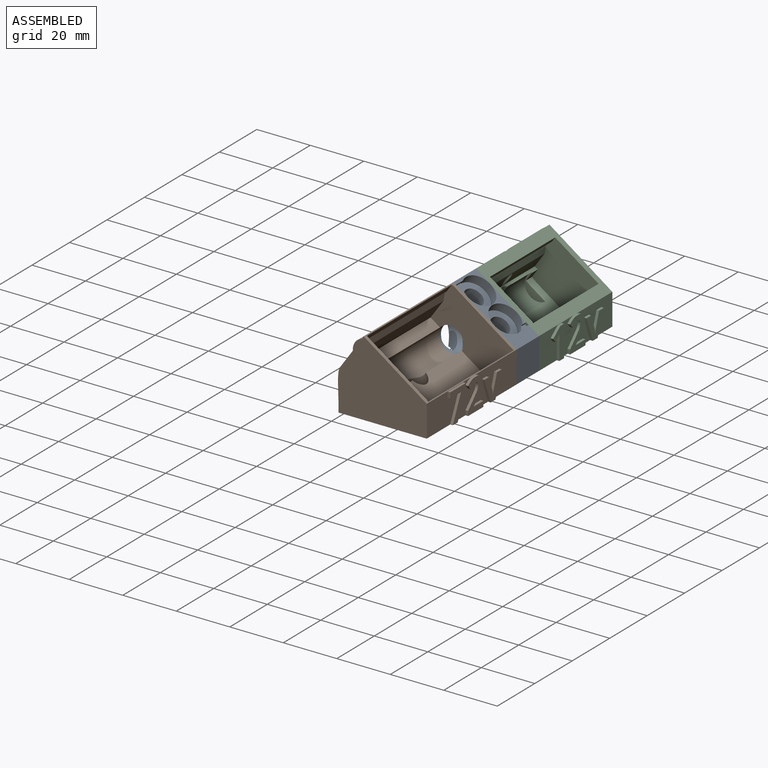
[diagram: assembled view]
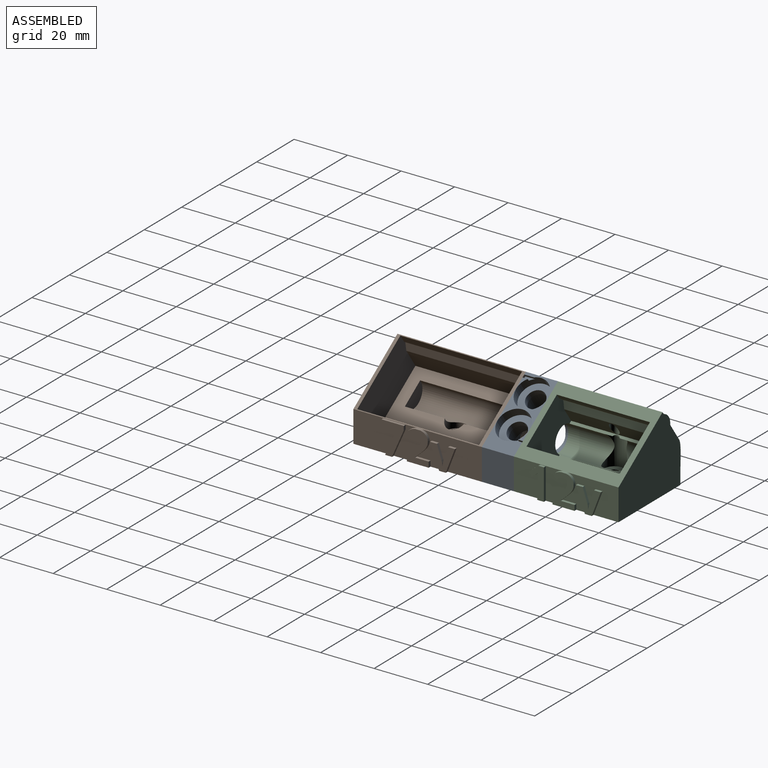
[diagram: assembled view, second angle]
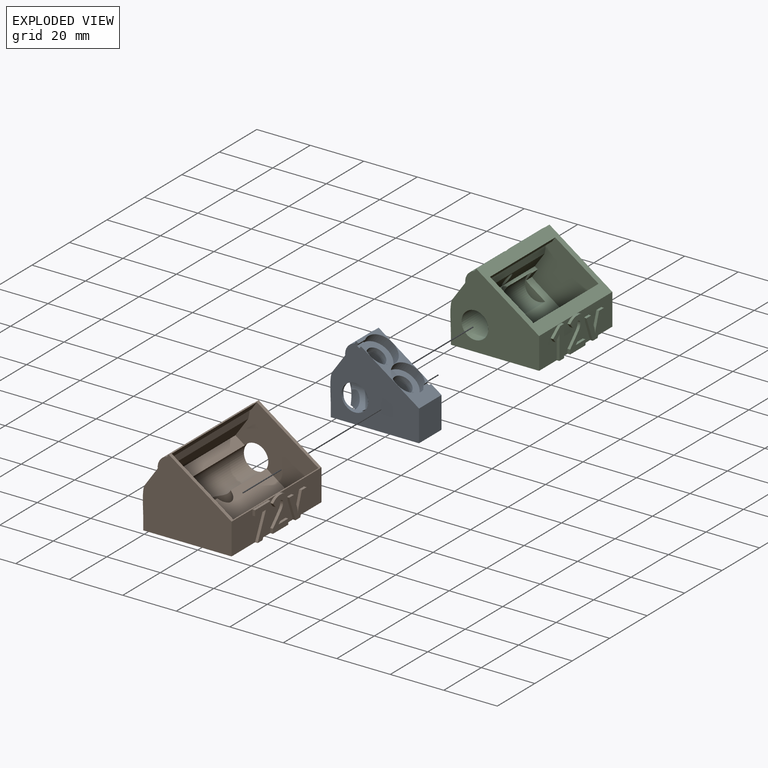
[diagram: exploded view]
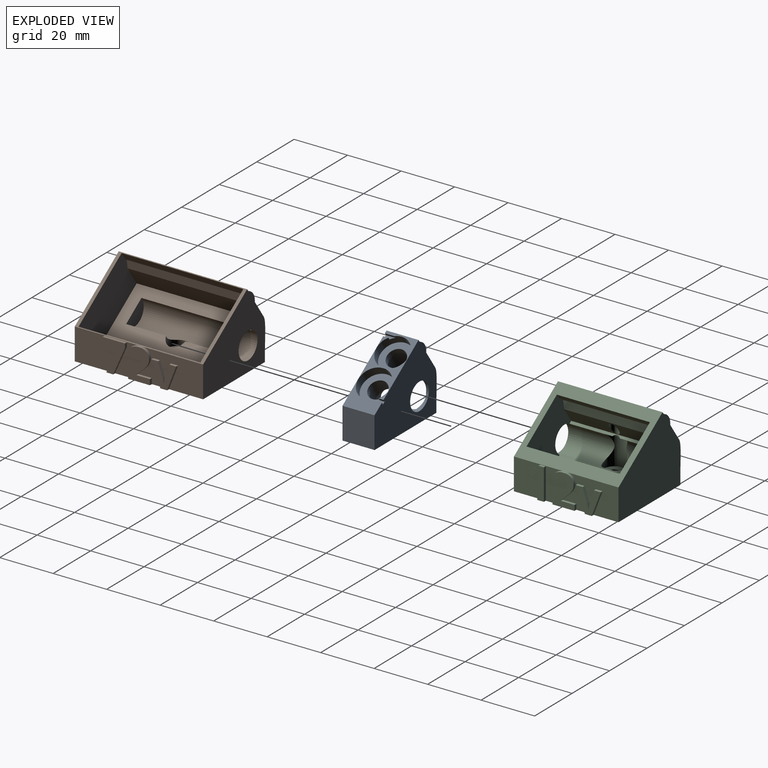
[diagram: exploded view, second angle]
ASSEMBLY  parts=3 mates=2
PART A: 33 faces, bbox 38.7x12.1x34 mm
  f0: plane 23.51x16.46mm, normal (0.57,0,0.82), area 116.1mm2, adj f1,f6,f7,f13,f19,f21,f27,f28
  f1: plane 33.57x28.21mm, normal (0,-1,0), area 598.7mm2, adj f0,f6,f7,f8,f9,f10,f11,f12
  f2: cylinder r=5mm len=14.41mm, axis (0.57,0,0.82), area 125.4mm2, adj f12,f25
  f3: cylinder r=3.5mm len=7.05mm, axis (0.57,0,0.82), area 50.6mm2, adj f18,f22
  f4: cylinder r=3.5mm len=7.05mm, axis (0.57,0,0.82), area 50.6mm2, adj f16,f20
  f5: plane 4.06x1.44mm, normal (-1,0,0), area 4.4mm2, adj f10,f12,f13,f15
  f6: plane 12x11.74mm, normal (1,0,0), area 140.9mm2, adj f0,f1,f12,f13
  f7: plane 12x0.95mm, normal (-0.82,0,0.57), area 13.9mm2, adj f0,f1,f8,f13
  f8: cylinder r=4.58mm len=12mm, axis (0,1,0), area 78.2mm2, adj f1,f7,f9,f13
  f9: plane 12x6.85mm, normal (-0.82,0,0.57), area 100.3mm2, adj f1,f8,f10,f13
  f10: extruded ~12x11.51mm, area 80mm2, adj f1,f5,f9,f11,f13,f15
  f11: plane 4.06x1.44mm, normal (-1,0,0), area 4.4mm2, adj f1,f10,f12,f15
  f12: plane 33x12mm, normal (0,0,-1), area 274.9mm2, adj f1,f2,f5,f6,f11,f13,f15
  f13: plane 33.57x28.21mm, normal (0,1,0), area 598.7mm2, adj f0,f5,f6,f7,f8,f9,f10,f12
  f14: cylinder r=5mm len=12mm, axis (0,-1,0), area 98.8mm2, adj f1,f13,f15,f25
  f15: cylinder r=5mm len=24.37mm, axis (0.57,0,0.82), area 359mm2, adj f5,f10,f11,f12,f14,f16,f23,f24
  f16: plane 10x8.19mm, normal (-0.57,0,-0.82), area 40.1mm2, adj f4,f15
  f17: cylinder r=5mm len=11.75mm, axis (0.57,0,0.82), area 145.9mm2, adj f18,f25,f26
  f18: plane 10x8.19mm, normal (-0.57,0,-0.82), area 40.1mm2, adj f3,f17
  f19: cylinder r=5.95mm len=11.9mm, axis (0.57,0,0.82), area 128.9mm2, adj f0,f20,f30,f31,f32
  f20: plane 11.9x9.75mm, normal (0.57,0,0.82), area 72.7mm2, adj f4,f19
  f21: cylinder r=5.95mm len=11.9mm, axis (0.57,0,0.82), area 128.9mm2, adj f0,f22,f27,f28,f29
  f22: plane 11.9x9.75mm, normal (0.57,0,0.82), area 72.7mm2, adj f3,f21
  f23: plane 6.59x3.85mm, normal (1,0,0), area 3.9mm2, adj f15,f25
  f24: plane 6.59x3.85mm, normal (1,0,0), area 3.9mm2, adj f15,f25
  f25: cylinder r=5.15mm len=22.6mm, axis (-1,0,0), area 232.1mm2, adj f2,f14,f15,f17,f23,f24,f26
  f26: plane 10.29x8.19mm, normal (-1,0,0), area 48.5mm2, adj f17,f25
  f27: plane 3.57x0.82mm, normal (-0.82,0,0.57), area 3.6mm2, adj f0,f13,f21,f29
  f28: plane 1.92x0.82mm, normal (0.82,0,-0.57), area 1.9mm2, adj f0,f13,f21,f29
  f29: plane 3.57x0.9mm, normal (0.57,0,0.82), area 2.9mm2, adj f13,f21,f27,f28
  f30: plane 1.92x0.82mm, normal (-0.82,0,0.57), area 1.9mm2, adj f0,f1,f19,f32
  f31: plane 3.57x0.82mm, normal (0.82,0,-0.57), area 3.6mm2, adj f0,f1,f19,f32
  f32: plane 3.57x0.9mm, normal (0.57,0,0.82), area 2.9mm2, adj f1,f19,f30,f31
PART B: 69 faces, bbox 34.6x48x28.2 mm
  f0: plane 26.05x11.75mm, normal (1,0,0), area 230.1mm2, adj f3,f4,f11,f27,f28,f29,f30,f31
  f1: cylinder r=5mm len=42.5mm, axis (0,1,0), area 692.5mm2, adj f12,f21,f22,f24,f25
  f2: cylinder r=1.65mm len=3.3mm, axis (0,0,-1), area 20.7mm2, adj f3,f26
  f3: plane 48x34mm, normal (0,0,-1), area 1571.4mm2, adj f0,f2,f8,f9,f11,f12,f13,f21
  f4: plane 48x23.51mm, normal (0.57,0,0.82), area 100.9mm2, adj f0,f9,f10,f11,f12,f16,f17,f22
  f5: cylinder r=4.58mm len=48mm, axis (0,1,0), area 312.9mm2, adj f6,f10,f11,f12
  f6: plane 48x6.85mm, normal (-0.82,0,0.57), area 401.1mm2, adj f5,f7,f11,f12
  f7: extruded ~48x11.51mm, area 558.2mm2, adj f6,f8,f11,f12
  f8: plane 48x4mm, normal (-1,0,0), area 192mm2, adj f3,f7,f11,f12
  f9: plane 24.25x11.76mm, normal (1,0,0), area 203.1mm2, adj f3,f4,f12,f35,f36,f37,f38,f39
  f10: plane 48x0.95mm, normal (-0.82,0,0.57), area 55.8mm2, adj f4,f5,f11,f12
  f11: plane 33.57x28.21mm, normal (0,-1,0), area 678.4mm2, adj f0,f3,f4,f5,f6,f7,f8,f10
  f12: plane 33.57x28.21mm, normal (0,1,0), area 599.8mm2, adj f1,f3,f4,f5,f6,f7,f8,f9
  f13: plane 45.5x6.71mm, normal (-0.82,0,0.57), area 372.6mm2, adj f3,f14,f22,f23
  f14: plane 45.5x2.77mm, normal (-0.5,0,0.87), area 145.3mm2, adj f13,f15,f22,f23
  f15: plane 45.5x0.79mm, normal (-0.98,0,0.2), area 36.5mm2, adj f14,f16,f22,f23
  f16: plane 45.5x2.84mm, normal (-0.82,0,0.57), area 157.6mm2, adj f4,f15,f22,f23
  f17: plane 45.5x2.84mm, normal (0.82,0,-0.57), area 157.6mm2, adj f4,f18,f22,f23
  f18: plane 45.5x0.68mm, normal (0.52,0,-0.85), area 36.5mm2, adj f17,f19,f22,f23
  f19: plane 45.5x3.14mm, normal (0.98,0,-0.17), area 145.3mm2, adj f18,f20,f22,f23
  f20: plane 45.5x6.89mm, normal (0.82,0,-0.57), area 382.5mm2, adj f19,f21,f22,f23
  f21: plane 45.5x21.04mm, normal (0.57,0,0.82), area 741.6mm2, adj f1,f3,f20,f22,f23,f24,f25
  f22: plane 31.03x28.02mm, normal (0,-1,0), area 381.6mm2, adj f1,f3,f4,f13,f14,f15,f16,f17
  f23: plane 31.03x28.02mm, normal (0,1,0), area 415.8mm2, adj f3,f4,f13,f14,f15,f16,f17,f18
  f24: plane 9.37x8.27mm, normal (0,1,0), area 44.4mm2, adj f1,f21
  f25: cylinder r=3.75mm len=7.5mm, axis (0,0,-1), area 66.9mm2, adj f1,f21,f26
  f26: plane 7.5x7.5mm, normal (0,0,1), area 35.6mm2, adj f2,f25
  f27: plane 9.56x4.37mm, normal (0,-0.91,0.42), area 10.5mm2, adj f0,f3,f32,f33
  f28: plane 10.08x4.4mm, normal (0,0.92,-0.4), area 11mm2, adj f0,f3,f29,f33
  f29: plane 1.55x1mm, normal (0,1,0), area 1.5mm2, adj f0,f28,f30,f33
  f30: plane 8.36x1mm, normal (0,0,1), area 8.4mm2, adj f0,f29,f31,f33
  f31: plane 2.07x1mm, normal (0,-1,0), area 2.1mm2, adj f0,f30,f32,f33
  f32: plane 5.74x1mm, normal (0,0,-1), area 5.7mm2, adj f0,f27,f31,f33
  f33: plane 11.63x8.36mm, normal (1,0,0), area 41mm2, adj f3,f27,f28,f29,f30,f31,f32
  f34: plane 1.71x1mm, normal (0,-1,0), area 1.7mm2, adj f0,f3,f57,f58
  f35: plane 2.07x1mm, normal (0,1,0), area 2.1mm2, adj f3,f9,f36,f58
  f36: plane 5.07x1mm, normal (0,0,1), area 5.1mm2, adj f9,f35,f37,f58
  f37: plane 1x0.11mm, normal (0,1,0), area 0.1mm2, adj f9,f36,f38,f58
  f38: plane 1.5x1.41mm, normal (0,0.69,-0.73), area 2.1mm2, adj f9,f37,f39,f58
  f39: extruded ~2.11x2.09mm, area 3mm2, adj f9,f38,f40,f58
  f40: extruded ~1.45x1mm, area 1.7mm2, adj f9,f39,f41,f58
  f41: extruded ~1.51x1mm, area 1.5mm2, adj f9,f40,f42,f58
  f42: extruded ~1.64x1mm, area 1.7mm2, adj f9,f41,f43,f58
  f43: extruded ~1.3x1.12mm, area 1.7mm2, adj f9,f42,f44,f58
  f44: extruded ~1.08x1mm, area 1.1mm2, adj f9,f43,f45,f58
  f45: plane 1.84x1mm, normal (0,0,1), area 1.8mm2, adj f4,f44,f46,f58
  f46: extruded ~1x0.51mm, area 0.5mm2, adj f0,f45,f47,f58
  f47: extruded ~1.24x1mm, area 1.3mm2, adj f0,f46,f48,f58
  f48: extruded ~1.42x1.04mm, area 1.8mm2, adj f0,f47,f49,f58
  f49: plane 1.59x1.34mm, normal (0,-0.76,-0.65), area 2.1mm2, adj f0,f48,f50,f58
  f50: extruded ~1.33x1mm, area 1.6mm2, adj f0,f49,f51,f58
  f51: extruded ~1.31x1mm, area 1.4mm2, adj f0,f50,f52,f58
  f52: extruded ~1.03x1mm, area 1.1mm2, adj f0,f51,f53,f58
  f53: extruded ~1.04x1mm, area 1.1mm2, adj f0,f52,f54,f58
  f54: extruded ~1x0.91mm, area 0.9mm2, adj f0,f53,f55,f58
  f55: extruded ~1x0.95mm, area 1.1mm2, adj f0,f54,f56,f58
  f56: extruded ~1.84x1.7mm, area 2.5mm2, adj f0,f55,f57,f58
  f57: plane 2.95x2.92mm, normal (0,-0.71,0.7), area 4.2mm2, adj f0,f34,f56,f58
  f58: plane 11.76x8.17mm, normal (1,0,0), area 50.4mm2, adj f3,f34,f35,f36,f37,f38,f39,f40
  f59: plane 8.91x3.39mm, normal (0,-0.93,-0.36), area 9.5mm2, adj f3,f9,f67,f68
  f60: plane 8.91x3.4mm, normal (0,0.93,-0.36), area 9.5mm2, adj f3,f9,f61,f68
  f61: plane 2.54x1mm, normal (0,0,1), area 2.5mm2, adj f9,f60,f62,f68
  f62: plane 5.07x1.71mm, normal (0,-0.95,0.32), area 5.4mm2, adj f9,f61,f63,f68
  f63: extruded ~1.82x1mm, area 1.9mm2, adj f9,f62,f64,f68
  f64: plane 1x0.05mm, normal (0,0,1), area 0mm2, adj f9,f63,f65,f68
  f65: extruded ~1.82x1mm, area 1.9mm2, adj f9,f64,f66,f68
  f66: plane 5.07x1.72mm, normal (0,0.95,0.32), area 5.4mm2, adj f9,f65,f67,f68
  f67: plane 2.54x1mm, normal (0,0,1), area 2.5mm2, adj f9,f59,f66,f68
  f68: plane 9.28x8.91mm, normal (1,0,0), area 39.2mm2, adj f3,f59,f60,f61,f62,f63,f64,f65
PART C: 82 faces, bbox 34.6x39.1x28.2 mm
  f0: plane 20.54x11.75mm, normal (1,0,0), area 171mm2, adj f8,f13,f15,f37,f38,f39,f40,f41
  f1: cylinder r=5mm len=33.8mm, axis (0,-1,0), area 326.9mm2, adj f2,f3,f15,f20,f29,f30,f33,f34
  f2: cylinder r=5mm len=12mm, axis (0,-1,0), area 143.5mm2, adj f1,f3,f30,f33
  f3: plane 34.8x1.12mm, normal (0.57,0,0.82), area 36.8mm2, adj f1,f2,f6,f19,f28,f29,f30,f31
  f4: cylinder r=1.65mm len=3.3mm, axis (0,0,-1), area 20.7mm2, adj f13,f36
  f5: cylinder r=4.58mm len=39.1mm, axis (0,1,0), area 243.6mm2, adj f9,f10,f15,f16,f32
  f6: plane 3.15x3.14mm, normal (0.82,0,-0.57), area 12.1mm2, adj f3,f7,f28,f30
  f7: plane 3.15x1.63mm, normal (0.63,0,0.77), area 6.7mm2, adj f6,f20,f28,f30
  f8: plane 39.1x23.51mm, normal (0.57,0,0.82), area 434.4mm2, adj f0,f9,f14,f15,f16,f26,f27,f28
  f9: plane 39.1x0.95mm, normal (-0.82,0,0.57), area 45.2mm2, adj f5,f8,f15,f16,f32
  f10: plane 39.1x6.85mm, normal (-0.82,0,0.57), area 326.7mm2, adj f5,f11,f15,f16
  f11: extruded ~39.1x11.51mm, area 454.7mm2, adj f10,f12,f15,f16
  f12: plane 39.1x4mm, normal (-1,0,0), area 156.4mm2, adj f11,f13,f15,f16
  f13: plane 39.1x34mm, normal (0,0,-1), area 1295mm2, adj f0,f4,f12,f14,f15,f16,f37,f38
  f14: plane 20.88x11.76mm, normal (1,0,0), area 163mm2, adj f8,f13,f16,f48,f49,f50,f51,f52
  f15: plane 33.57x28.21mm, normal (0,-1,0), area 599.8mm2, adj f0,f1,f5,f8,f9,f10,f11,f12
  f16: plane 33.57x28.21mm, normal (0,1,0), area 678.4mm2, adj f5,f8,f9,f10,f11,f12,f13,f14
  f17: plane 34.8x2.27mm, normal (0.54,0,-0.84), area 93.9mm2, adj f18,f27,f28,f29
  f18: plane 34.8x3.34mm, normal (0.99,0,-0.15), area 117.4mm2, adj f17,f19,f28,f29
  f19: plane 34.8x5.31mm, normal (0.82,0,-0.57), area 210.6mm2, adj f3,f18,f28,f29,f32
  f20: plane 34.8x10.98mm, normal (0.57,0,0.82), area 251.8mm2, adj f1,f7,f21,f28,f29,f30
  f21: plane 34.8x3.28mm, normal (-0.82,0,0.57), area 139.2mm2, adj f20,f22,f28,f29
  f22: plane 34.8x1.58mm, normal (0.57,0,0.82), area 66.9mm2, adj f21,f23,f28,f29
  f23: plane 34.8x5.31mm, normal (-0.82,0,0.57), area 225.5mm2, adj f22,f24,f28,f29
  f24: plane 34.8x2.96mm, normal (-0.48,0,0.88), area 117.4mm2, adj f23,f25,f28,f29
  f25: plane 34.8x2.63mm, normal (-0.98,0,0.22), area 93.9mm2, adj f24,f26,f28,f29
  f26: plane 34.8x1.64mm, normal (-0.82,0,0.57), area 69.6mm2, adj f8,f25,f28,f29
  f27: plane 34.8x1.64mm, normal (0.82,0,-0.57), area 69.6mm2, adj f8,f17,f28,f29
  f28: plane 24.9x24.7mm, normal (0,-1,0), area 336.5mm2, adj f3,f6,f7,f8,f17,f18,f19,f20
  f29: plane 24.7x23.82mm, normal (0,1,0), area 280.3mm2, adj f1,f3,f8,f17,f18,f19,f20,f21
  f30: plane 9.28x7.62mm, normal (0,-1,0), area 22.4mm2, adj f1,f2,f3,f6,f7,f20
  f31: cylinder r=1.65mm len=2.72mm, axis (0,0,-1), area 1mm2, adj f3,f35
  f32: cylinder r=1.65mm len=13.34mm, axis (0,0,-1), area 101.5mm2, adj f5,f9,f19
  f33: cylinder r=4mm len=11.3mm, axis (0,0,-1), area 119.9mm2, adj f1,f2,f3,f34,f35,f36
  f34: cylinder r=4mm len=0.05mm, axis (0,0,-1), area 0mm2, adj f1,f3,f33
  f35: plane 7.78x3.07mm, normal (0,0,-1), area 16.4mm2, adj f3,f31,f33
  f36: plane 8x8mm, normal (0,0,1), area 41.7mm2, adj f4,f33
  f37: plane 6.71x1mm, normal (0,-1,0), area 6.7mm2, adj f0,f13,f45,f46
  f38: plane 11.64x1mm, normal (0,1,0), area 11.6mm2, adj f0,f13,f39,f46
  f39: plane 2.03x1mm, normal (0,0,1), area 2mm2, adj f0,f38,f40,f46
  f40: plane 3.77x3mm, normal (0,-0.62,0.78), area 4.8mm2, adj f0,f39,f41,f46
  f41: plane 1.49x1.19mm, normal (0,-0.78,-0.63), area 1.9mm2, adj f0,f40,f42,f46
  f42: plane 1.35x1.08mm, normal (0,0.63,-0.78), area 1.7mm2, adj f0,f41,f43,f46
  f43: extruded ~1x0.86mm, area 1.2mm2, adj f0,f42,f44,f46
  f44: plane 1.22x1mm, normal (0,-1,0.03), area 1.2mm2, adj f0,f43,f45,f46
  f45: plane 1.11x1mm, normal (0,-1,0.02), area 1.1mm2, adj f0,f37,f44,f46
  f46: plane 11.64x5.81mm, normal (1,0,0), area 35.3mm2, adj f13,f37,f38,f39,f40,f41,f42,f43
  f47: plane 1.66x1mm, normal (0,-1,0), area 1.7mm2, adj f0,f13,f70,f71
  f48: plane 2.02x1mm, normal (0,1,0), area 2mm2, adj f13,f14,f49,f71
  f49: plane 5.1x1mm, normal (0,0,1), area 5.1mm2, adj f14,f48,f50,f71
  f50: plane 1x0.11mm, normal (0,1,0), area 0.1mm2, adj f14,f49,f51,f71
  f51: plane 1.51x1.42mm, normal (0,0.69,-0.73), area 2.1mm2, adj f14,f50,f52,f71
  f52: extruded ~2.12x2.1mm, area 3mm2, adj f14,f51,f53,f71
  f53: extruded ~1.45x1mm, area 1.7mm2, adj f14,f52,f54,f71
  f54: extruded ~1.52x1mm, area 1.6mm2, adj f14,f53,f55,f71
  f55: extruded ~1.65x1mm, area 1.7mm2, adj f14,f54,f56,f71
  f56: extruded ~1.31x1.12mm, area 1.7mm2, adj f14,f55,f57,f71
  f57: extruded ~1.08x1mm, area 1.1mm2, adj f14,f56,f58,f71
  f58: plane 1.85x1mm, normal (0,0,1), area 1.8mm2, adj f8,f57,f59,f71
  f59: extruded ~1x0.51mm, area 0.5mm2, adj f0,f58,f60,f71
  f60: extruded ~1.24x1mm, area 1.3mm2, adj f0,f59,f61,f71
  f61: extruded ~1.43x1.04mm, area 1.8mm2, adj f0,f60,f62,f71
  f62: plane 1.59x1.35mm, normal (0,-0.76,-0.65), area 2.1mm2, adj f0,f61,f63,f71
  f63: extruded ~1.34x1mm, area 1.6mm2, adj f0,f62,f64,f71
  f64: extruded ~1.32x1mm, area 1.4mm2, adj f0,f63,f65,f71
  f65: extruded ~1.04x1mm, area 1.1mm2, adj f0,f64,f66,f71
  f66: extruded ~1.05x1mm, area 1.2mm2, adj f0,f65,f67,f71
  f67: extruded ~1x0.91mm, area 0.9mm2, adj f0,f66,f68,f71
  f68: extruded ~1x0.96mm, area 1.1mm2, adj f0,f67,f69,f71
  f69: extruded ~1.85x1.71mm, area 2.5mm2, adj f0,f68,f70,f71
  f70: plane 2.97x2.94mm, normal (0,-0.71,0.7), area 4.2mm2, adj f0,f47,f69,f71
  f71: plane 11.76x8.22mm, normal (1,0,0), area 50.5mm2, adj f13,f47,f48,f49,f50,f51,f52,f53
  f72: plane 8.89x3.39mm, normal (0,-0.93,-0.36), area 9.5mm2, adj f13,f14,f80,f81
  f73: plane 8.89x3.39mm, normal (0,0.93,-0.36), area 9.5mm2, adj f13,f14,f74,f81
  f74: plane 2.56x1mm, normal (0,0,1), area 2.6mm2, adj f14,f73,f75,f81
  f75: plane 5.1x1.72mm, normal (0,-0.95,0.32), area 5.4mm2, adj f14,f74,f76,f81
  f76: extruded ~1.83x1mm, area 1.9mm2, adj f14,f75,f77,f81
  f77: plane 1x0.05mm, normal (0,0,1), area 0mm2, adj f14,f76,f78,f81
  f78: extruded ~1.83x1mm, area 1.9mm2, adj f14,f77,f79,f81
  f79: plane 5.1x1.73mm, normal (0,0.95,0.32), area 5.4mm2, adj f14,f78,f80,f81
  f80: plane 2.56x1mm, normal (0,0,1), area 2.6mm2, adj f14,f72,f79,f81
  f81: plane 9.33x8.89mm, normal (1,0,0), area 39.5mm2, adj f13,f72,f73,f74,f75,f76,f77,f78
PLACE A t=(-6.83,-2.54,2.72)mm
PLACE B t=(-6.83,-32.54,2.72)mm
PLACE C t=(-6.83,23.01,2.72)mm
MATE fastened B.f1 <-> A.f14  axis (0,1,0) through (-30.83,-8.54,11.72)mm
MATE fastened C.f1 <-> A.f14  axis (0,-1,0) through (-30.83,3.46,11.72)mm
